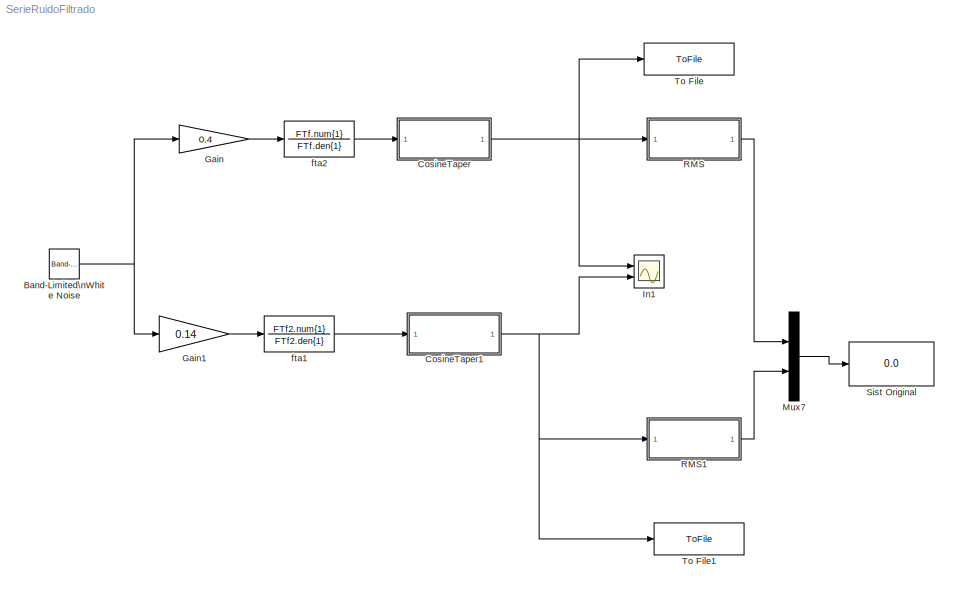
MODEL SerieRuidoFiltrado
KIND model
BLOCK [Reference] Band-Limited\nWhite Noise  REF=simulink/Sources/Band-Limited\nWhite Noise
  Cov = 1
  FunctionWithSeparateData = off
  Ports = [0, 1]
  RTWMemSecDataConstants = Inherit from model
  RTWMemSecDataInternal = Inherit from model
  RTWMemSecDataParameters = Inherit from model
  RTWMemSecFuncExecute = Inherit from model
  RTWMemSecFuncInitTerm = Inherit from model
  ShowPortLabels = FromPortIcon
  SourceBlock = simulink/Sources/Band-Limited\nWhite Noise
  SourceType = Band-Limited White Noise.
  SystemSampleTime = -1
  Ts = 10^-3
  VectorParams1D = on
  seed = [23341]
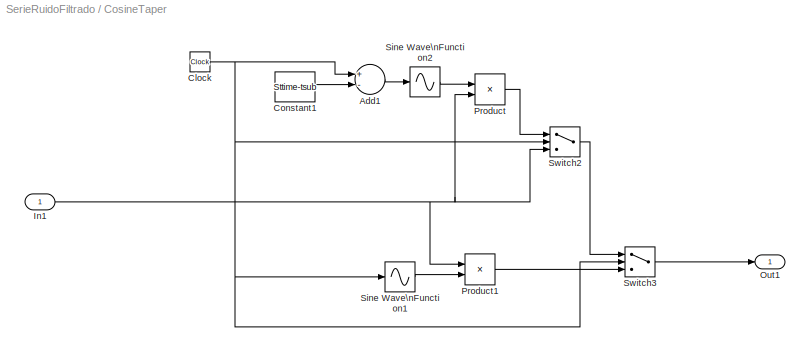
BLOCK [SubSystem] CosineTaper
  FunctionWithSeparateData = off
  MaskHideContents = off
  MinAlgLoopOccurrences = off
  Opaque = off
  Ports = [1, 1]
  PropExecContextOutsideSubsystem = off
  RTWSystemCode = Auto
  RequestExecContextInheritance = off
  TreatAsAtomicUnit = on
BLOCK [Sum] CosineTaper/Add1
  InputSameDT = off
  Inputs = +-
  OutDataType = sfix(16)
  OutDataTypeMode = Inherit via internal rule
  OutDataTypeStr = Inherit: Inherit via internal rule
  OutScaling = 2^-10
  Ports = [2, 1]
  SaturateOnIntegerOverflow = off
BLOCK [Clock] CosineTaper/Clock
  Decimation = 10
BLOCK [Constant] CosineTaper/Constant1
  OutDataType = sfix(16)
  OutScaling = 2^0
  Value = Sttime-tsub
BLOCK [Inport] CosineTaper/In1
  IconDisplay = Port number
  OutDataType = sfix(16)
  OutScaling = 2^0
BLOCK [Outport] CosineTaper/Out1
  IconDisplay = Port number
  OutDataType = sfix(16)
  OutScaling = 2^0
BLOCK [Product] CosineTaper/Product
  InputSameDT = off
  OutDataType = sfix(16)
  OutDataTypeMode = Inherit via internal rule
  OutDataTypeStr = Inherit: Inherit via internal rule
  OutScaling = 2^0
  Ports = [2, 1]
  SaturateOnIntegerOverflow = off
BLOCK [Product] CosineTaper/Product1
  InputSameDT = off
  OutDataType = sfix(16)
  OutDataTypeMode = Inherit via internal rule
  OutDataTypeStr = Inherit: Inherit via internal rule
  OutScaling = 2^0
  Ports = [2, 1]
  SaturateOnIntegerOverflow = off
BLOCK [Sin] CosineTaper/Sine Wave\nFunction1
  Amplitude = 0.5
  Bias = 0.5
  Frequency = pi/tsub
  Phase = -pi/2
  Ports = [1, 1]
  SampleTime = 0
  TimeSource = Use external signal
BLOCK [Sin] CosineTaper/Sine Wave\nFunction2
  Amplitude = 0.5
  Bias = 0.5
  Frequency = pi/tsub
  Phase = pi/2
  Ports = [1, 1]
  SampleTime = 0
  TimeSource = Use external signal
BLOCK [Switch] CosineTaper/Switch2
  InputSameDT = off
  OutDataType = fixdt(1, 16)
  OutScaling = 2^0
  SaturateOnIntegerOverflow = off
  Threshold = Sttime-tsub
BLOCK [Switch] CosineTaper/Switch3
  InputSameDT = off
  OutDataType = fixdt(1, 16)
  OutScaling = 2^0
  SaturateOnIntegerOverflow = off
  Threshold = Intime+tsub
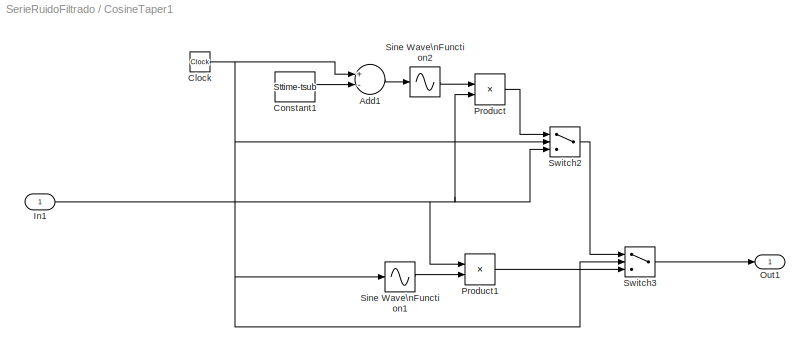
BLOCK [SubSystem] CosineTaper1
  FunctionWithSeparateData = off
  MaskHideContents = off
  MinAlgLoopOccurrences = off
  Opaque = off
  Ports = [1, 1]
  PropExecContextOutsideSubsystem = off
  RTWSystemCode = Auto
  RequestExecContextInheritance = off
  TreatAsAtomicUnit = on
BLOCK [Sum] CosineTaper1/Add1
  InputSameDT = off
  Inputs = +-
  OutDataType = sfix(16)
  OutDataTypeMode = Inherit via internal rule
  OutDataTypeStr = Inherit: Inherit via internal rule
  OutScaling = 2^-10
  Ports = [2, 1]
  SaturateOnIntegerOverflow = off
BLOCK [Clock] CosineTaper1/Clock
  Decimation = 10
BLOCK [Constant] CosineTaper1/Constant1
  OutDataType = sfix(16)
  OutScaling = 2^0
  Value = Sttime-tsub
BLOCK [Inport] CosineTaper1/In1
  IconDisplay = Port number
  OutDataType = sfix(16)
  OutScaling = 2^0
BLOCK [Outport] CosineTaper1/Out1
  IconDisplay = Port number
  OutDataType = sfix(16)
  OutScaling = 2^0
BLOCK [Product] CosineTaper1/Product
  InputSameDT = off
  OutDataType = sfix(16)
  OutDataTypeMode = Inherit via internal rule
  OutDataTypeStr = Inherit: Inherit via internal rule
  OutScaling = 2^0
  Ports = [2, 1]
  SaturateOnIntegerOverflow = off
BLOCK [Product] CosineTaper1/Product1
  InputSameDT = off
  OutDataType = sfix(16)
  OutDataTypeMode = Inherit via internal rule
  OutDataTypeStr = Inherit: Inherit via internal rule
  OutScaling = 2^0
  Ports = [2, 1]
  SaturateOnIntegerOverflow = off
BLOCK [Sin] CosineTaper1/Sine Wave\nFunction1
  Amplitude = 0.5
  Bias = 0.5
  Frequency = pi/tsub
  Phase = -pi/2
  Ports = [1, 1]
  SampleTime = 0
  TimeSource = Use external signal
BLOCK [Sin] CosineTaper1/Sine Wave\nFunction2
  Amplitude = 0.5
  Bias = 0.5
  Frequency = pi/tsub
  Phase = pi/2
  Ports = [1, 1]
  SampleTime = 0
  TimeSource = Use external signal
BLOCK [Switch] CosineTaper1/Switch2
  InputSameDT = off
  OutDataType = fixdt(1, 16)
  OutScaling = 2^0
  SaturateOnIntegerOverflow = off
  Threshold = Sttime-tsub
BLOCK [Switch] CosineTaper1/Switch3
  InputSameDT = off
  OutDataType = fixdt(1, 16)
  OutScaling = 2^0
  SaturateOnIntegerOverflow = off
  Threshold = Intime+tsub
BLOCK [Gain] Gain
  Gain = 0.4
  OutDataType = fixdt(1, 16)
  OutDataTypeMode = Inherit via internal rule
  OutDataTypeStr = Inherit: Inherit via internal rule
  OutScaling = 2^0
  ParamDataTypeStr = Inherit: Inherit via internal rule
  ParameterDataType = fixdt(1, 16)
  ParameterDataTypeMode = Inherit via internal rule
  ParameterScaling = 2^0
  SaturateOnIntegerOverflow = off
BLOCK [Gain] Gain1
  Gain = 0.14
  OutDataType = fixdt(1, 16)
  OutDataTypeMode = Inherit via internal rule
  OutDataTypeStr = Inherit: Inherit via internal rule
  OutScaling = 2^0
  ParamDataTypeStr = Inherit: Inherit via internal rule
  ParameterDataType = fixdt(1, 16)
  ParameterDataTypeMode = Inherit via internal rule
  ParameterScaling = 2^0
  SaturateOnIntegerOverflow = off
BLOCK [Scope] In1
  DataFormat = StructureWithTime
  Floating = off
  LimitDataPoints = off
  NumInputPorts = 2
  Ports = [2]
  SampleTime = 0
  SaveName = Rand3and
  SaveToWorkspace = on
  YMax = 5~5
  YMin = -5~-5
BLOCK [Mux] Mux7
  DisplayOption = bar
  Inputs = 2
  Ports = [2, 1]
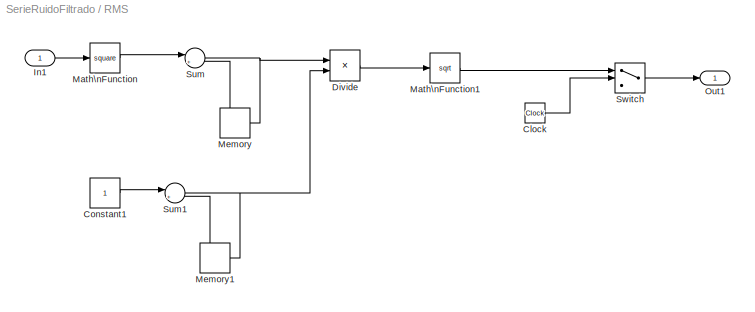
BLOCK [SubSystem] RMS
  FunctionWithSeparateData = off
  MaskHideContents = off
  MinAlgLoopOccurrences = off
  Opaque = off
  Ports = [1, 1]
  PropExecContextOutsideSubsystem = off
  RTWSystemCode = Auto
  RequestExecContextInheritance = off
  TreatAsAtomicUnit = on
BLOCK [Clock] RMS/Clock
  Decimation = 10
BLOCK [Constant] RMS/Constant1
  OutDataType = sfix(16)
  OutScaling = 2^0
BLOCK [Product] RMS/Divide
  InputSameDT = off
  Inputs = */
  OutDataType = fixdt(1, 16)
  OutDataTypeMode = Inherit via internal rule
  OutDataTypeStr = Inherit: Inherit via internal rule
  OutScaling = 2^-10
  Ports = [2, 1]
  RndMeth = Floor
  SaturateOnIntegerOverflow = off
BLOCK [Inport] RMS/In1
  IconDisplay = Port number
  OutDataType = sfix(16)
  OutScaling = 2^0
BLOCK [Math] RMS/Math\nFunction
  Operator = square
  OutDataType = fixdt(1, 16)
  OutScaling = 2^0
  Ports = [1, 1]
BLOCK [Math] RMS/Math\nFunction1
  Operator = sqrt
  OutDataType = sfix(16)
  OutScaling = 2^0
  Ports = [1, 1]
BLOCK [Memory] RMS/Memory
  InheritSampleTime = on
BLOCK [Memory] RMS/Memory1
  InheritSampleTime = on
BLOCK [Outport] RMS/Out1
  IconDisplay = Port number
  OutDataType = sfix(16)
  OutScaling = 2^0
BLOCK [Sum] RMS/Sum
  IconShape = round
  Inputs = |++
  OutDataType = sfix(16)
  OutScaling = 2^0
  Ports = [2, 1]
BLOCK [Sum] RMS/Sum1
  IconShape = round
  Inputs = |++
  OutDataType = sfix(16)
  OutScaling = 2^0
  Ports = [2, 1]
BLOCK [Switch] RMS/Switch
  InputSameDT = off
  OutDataType = fixdt(1, 16)
  OutScaling = 2^0
  SaturateOnIntegerOverflow = off
  Threshold = Sttime
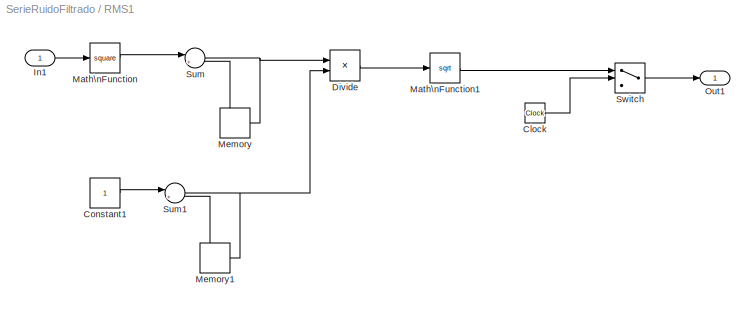
BLOCK [SubSystem] RMS1
  FunctionWithSeparateData = off
  MaskHideContents = off
  MinAlgLoopOccurrences = off
  Opaque = off
  Ports = [1, 1]
  PropExecContextOutsideSubsystem = off
  RTWSystemCode = Auto
  RequestExecContextInheritance = off
  TreatAsAtomicUnit = on
BLOCK [Clock] RMS1/Clock
  Decimation = 10
BLOCK [Constant] RMS1/Constant1
  OutDataType = sfix(16)
  OutScaling = 2^0
BLOCK [Product] RMS1/Divide
  InputSameDT = off
  Inputs = */
  OutDataType = fixdt(1, 16)
  OutDataTypeMode = Inherit via internal rule
  OutDataTypeStr = Inherit: Inherit via internal rule
  OutScaling = 2^-10
  Ports = [2, 1]
  RndMeth = Floor
  SaturateOnIntegerOverflow = off
BLOCK [Inport] RMS1/In1
  IconDisplay = Port number
  OutDataType = sfix(16)
  OutScaling = 2^0
BLOCK [Math] RMS1/Math\nFunction
  Operator = square
  OutDataType = fixdt(1, 16)
  OutScaling = 2^0
  Ports = [1, 1]
BLOCK [Math] RMS1/Math\nFunction1
  Operator = sqrt
  OutDataType = sfix(16)
  OutScaling = 2^0
  Ports = [1, 1]
BLOCK [Memory] RMS1/Memory
  InheritSampleTime = on
BLOCK [Memory] RMS1/Memory1
  InheritSampleTime = on
BLOCK [Outport] RMS1/Out1
  IconDisplay = Port number
  OutDataType = sfix(16)
  OutScaling = 2^0
BLOCK [Sum] RMS1/Sum
  IconShape = round
  Inputs = |++
  OutDataType = sfix(16)
  OutScaling = 2^0
  Ports = [2, 1]
BLOCK [Sum] RMS1/Sum1
  IconShape = round
  Inputs = |++
  OutDataType = sfix(16)
  OutScaling = 2^0
  Ports = [2, 1]
BLOCK [Switch] RMS1/Switch
  InputSameDT = off
  OutDataType = fixdt(1, 16)
  OutScaling = 2^0
  SaturateOnIntegerOverflow = off
  Threshold = Sttime
BLOCK [Display] Sist Original
  Decimation = 1
  Lockdown = off
  Ports = [1]
BLOCK [ToFile] To File
  Filename = Ruido01a30.mat
  MatrixName = Ruido
BLOCK [ToFile] To File1
  Filename = Ruido30a300.mat
  MatrixName = Ruido
BLOCK [TransferFcn] fta1
  Denominator = FTf2.den{1}
  Numerator = FTf2.num{1}
BLOCK [TransferFcn] fta2
  Denominator = FTf.den{1}
  Numerator = FTf.num{1}
NET Band-Limited\nWhite Noise:1 -> Gain1:1, Gain:1
LINE CosineTaper/Add1:1 -> CosineTaper/Sine Wave\nFunction2:1
NET CosineTaper/Clock:1 -> CosineTaper/Add1:1, CosineTaper/Sine Wave\nFunction1:1, CosineTaper/Switch2:2, CosineTaper/Switch3:2
LINE CosineTaper/Constant1:1 -> CosineTaper/Add1:2
NET CosineTaper/In1:1 -> CosineTaper/Product1:1, CosineTaper/Product:2, CosineTaper/Switch2:3
LINE CosineTaper/Product1:1 -> CosineTaper/Switch3:3
LINE CosineTaper/Product:1 -> CosineTaper/Switch2:1
LINE CosineTaper/Sine Wave\nFunction1:1 -> CosineTaper/Product1:2
LINE CosineTaper/Sine Wave\nFunction2:1 -> CosineTaper/Product:1
LINE CosineTaper/Switch2:1 -> CosineTaper/Switch3:1
LINE CosineTaper/Switch3:1 -> CosineTaper/Out1:1
LINE CosineTaper1/Add1:1 -> CosineTaper1/Sine Wave\nFunction2:1
NET CosineTaper1/Clock:1 -> CosineTaper1/Add1:1, CosineTaper1/Sine Wave\nFunction1:1, CosineTaper1/Switch2:2, CosineTaper1/Switch3:2
LINE CosineTaper1/Constant1:1 -> CosineTaper1/Add1:2
NET CosineTaper1/In1:1 -> CosineTaper1/Product1:1, CosineTaper1/Product:2, CosineTaper1/Switch2:3
LINE CosineTaper1/Product1:1 -> CosineTaper1/Switch3:3
LINE CosineTaper1/Product:1 -> CosineTaper1/Switch2:1
LINE CosineTaper1/Sine Wave\nFunction1:1 -> CosineTaper1/Product1:2
LINE CosineTaper1/Sine Wave\nFunction2:1 -> CosineTaper1/Product:1
LINE CosineTaper1/Switch2:1 -> CosineTaper1/Switch3:1
LINE CosineTaper1/Switch3:1 -> CosineTaper1/Out1:1
NET CosineTaper1:1 -> In1:2, RMS1:1, To File1:1
NET CosineTaper:1 -> In1:1, RMS:1, To File:1
LINE Gain1:1 -> fta1:1
LINE Gain:1 -> fta2:1
LINE Mux7:1 -> Sist Original:1
LINE RMS/Clock:1 -> RMS/Switch:2
LINE RMS/Constant1:1 -> RMS/Sum1:1
LINE RMS/Divide:1 -> RMS/Math\nFunction1:1
LINE RMS/In1:1 -> RMS/Math\nFunction:1
LINE RMS/Math\nFunction1:1 -> RMS/Switch:1
LINE RMS/Math\nFunction:1 -> RMS/Sum:1
LINE RMS/Memory1:1 -> RMS/Sum1:2
LINE RMS/Memory:1 -> RMS/Sum:2
NET RMS/Sum1:1 -> RMS/Divide:2, RMS/Memory1:1
NET RMS/Sum:1 -> RMS/Divide:1, RMS/Memory:1
LINE RMS/Switch:1 -> RMS/Out1:1
LINE RMS1/Clock:1 -> RMS1/Switch:2
LINE RMS1/Constant1:1 -> RMS1/Sum1:1
LINE RMS1/Divide:1 -> RMS1/Math\nFunction1:1
LINE RMS1/In1:1 -> RMS1/Math\nFunction:1
LINE RMS1/Math\nFunction1:1 -> RMS1/Switch:1
LINE RMS1/Math\nFunction:1 -> RMS1/Sum:1
LINE RMS1/Memory1:1 -> RMS1/Sum1:2
LINE RMS1/Memory:1 -> RMS1/Sum:2
NET RMS1/Sum1:1 -> RMS1/Divide:2, RMS1/Memory1:1
NET RMS1/Sum:1 -> RMS1/Divide:1, RMS1/Memory:1
LINE RMS1/Switch:1 -> RMS1/Out1:1
LINE RMS1:1 -> Mux7:2
LINE RMS:1 -> Mux7:1
LINE fta1:1 -> CosineTaper1:1
LINE fta2:1 -> CosineTaper:1
note: NET lines group one-source signal fan-out (src -> all destinations, sorted); 1:1 wires keep LINE
